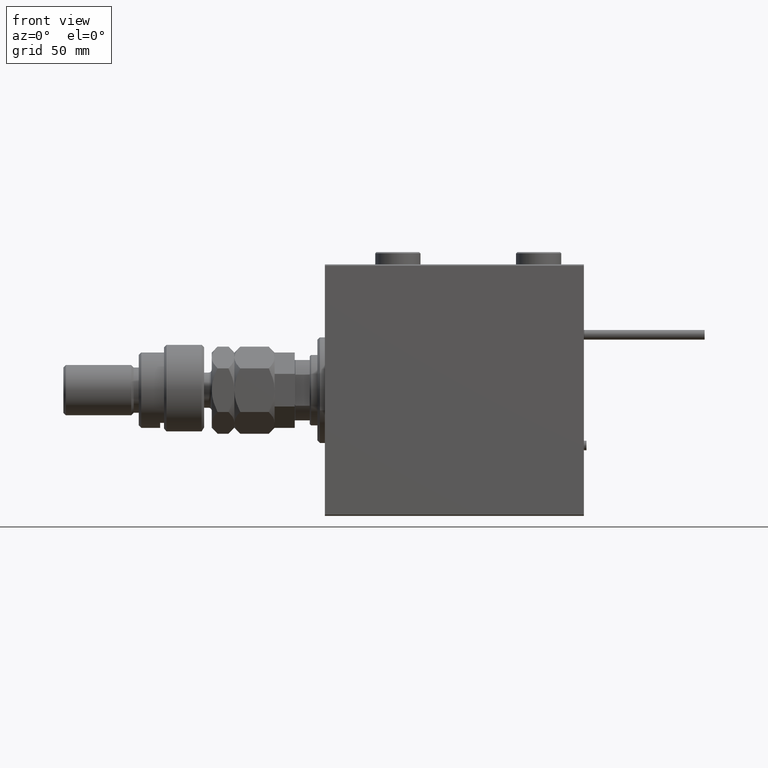
[diagram: clean part render]
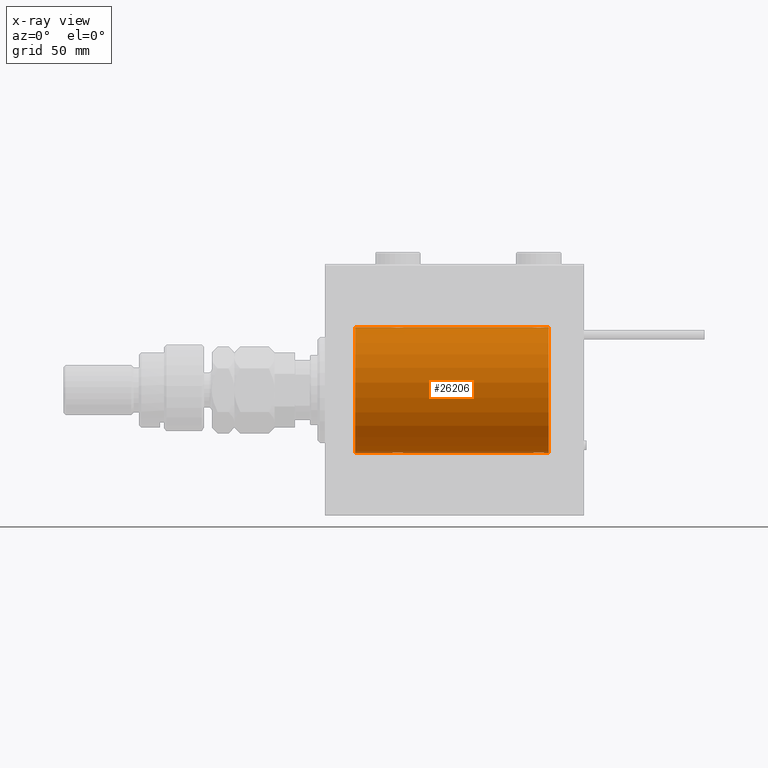
[diagram: x-ray — body ghosted, one internal face saturated and labeled with its STEP entity id]
A machine part, front view, then the same camera in x-ray: the body is ghosted and one INTERNAL B-rep face — a face not visible from any outside direction — is saturated and labeled: STEP entity #26206.
In plain terms, the highlighted cylindrical surface (partial cylindrical patch) has radius 25 mm, axis along (-1, -0, -0).
Its self-contained STEP definition (entity closure, byte-faithful):
#656 = CARTESIAN_POINT ( 'NONE',  ( 27.74616804575498108, -2.169003991399871989, 24.90589728951138326 ) ) ;
#849 = CARTESIAN_POINT ( 'NONE',  ( 85.80435660916303675, -2.372734907014170780, 24.88722742718433523 ) ) ;
#890 = CARTESIAN_POINT ( 'NONE',  ( 85.80788342405806191, -2.371528299825745645, -24.88734287464371420 ) ) ;
#1440 = CARTESIAN_POINT ( 'NONE',  ( 87.48417840057655326, -0.3254210271412207867, -24.99840249400844172 ) ) ;
#1450 = CARTESIAN_POINT ( 'NONE',  ( 28.35439333851368815, -2.420689345803754833, -24.88254961038873958 ) ) ;
#1718 = CARTESIAN_POINT ( 'NONE',  ( 28.19564339083697746, -2.372734907014167671, -24.88722742718433167 ) ) ;
#1990 = CARTESIAN_POINT ( 'NONE',  ( 31.49999999999999289, -0.1631750940176170117, -25.00000000000000711 ) ) ;
#2259 = CARTESIAN_POINT ( 'NONE',  ( 27.74915976075944712, -2.170728182476714174, -24.90574631553725027 ) ) ;
#3977 = CARTESIAN_POINT ( 'NONE',  ( 26.51582159942343608, -0.3254210271412225630, 24.99840249400844883 ) ) ;
#4431 = CARTESIAN_POINT ( 'NONE',  ( 86.88185954148649159, -1.653834020452929598, 24.94550385189585029 ) ) ;
#4661 = DIRECTION ( 'NONE',  ( -1.000000000000000000, -0.000000000000000000, -0.000000000000000000 ) ) ;
#4710 = CARTESIAN_POINT ( 'NONE',  ( 86.52256774340190759, -1.989585286700241484, 24.92087098724765681 ) ) ;
#5018 = CARTESIAN_POINT ( 'NONE',  ( 82.75393620905931868, -1.109818057797417268, -24.97580694515541921 ) ) ;
#5331 = CARTESIAN_POINT ( 'NONE',  ( 31.49999999999998579, -0.3305063766663721148, 25.00000000000000000 ) ) ;
#5565 = CARTESIAN_POINT ( 'NONE',  ( 86.25383195424502958, -2.169003991399871545, -24.90589728951138326 ) ) ;
#5607 = CARTESIAN_POINT ( 'NONE',  ( 30.98538033717094464, -1.528152964861312801, 24.95362559291378801 ) ) ;
#5691 = EDGE_CURVE ( 'NONE', #19779, #40758, #9015, .T. ) ;
#5831 = CARTESIAN_POINT ( 'NONE',  ( 82.50000000000000000, -0.3305063766663816072, -25.00000000000000355 ) ) ;
#5844 = CARTESIAN_POINT ( 'NONE',  ( 26.56650644760253499, -0.6588655613945862966, -24.99312727339971119 ) ) ;
#5948 = EDGE_CURVE ( 'NONE', #18693, #32486, #26788, .T. ) ;
#6109 = CARTESIAN_POINT ( 'NONE',  ( 26.50000000000000355, -1.828402720252098442E-15, -25.00000000000000000 ) ) ;
#6350 = VECTOR ( 'NONE', #23442, 1000.000000000000000 ) ;
#6761 = CIRCLE ( 'NONE', #37593, 25.00000000000000000 ) ;
#6917 = CARTESIAN_POINT ( 'NONE',  ( 30.25383195424503313, -2.169003991399864884, -24.90589728951138682 ) ) ;
#7088 = CARTESIAN_POINT ( 'NONE',  ( 89.00000000000000000, 0.000000000000000000, 25.00000000000000000 ) ) ;
#7151 = DIRECTION ( 'NONE',  ( -1.000000000000000000, 0.000000000000000000, 0.000000000000000000 ) ) ;
#7202 = CARTESIAN_POINT ( 'NONE',  ( 82.57985090779071413, -0.6480119923854228414, 24.99212088949390775 ) ) ;
#7278 = DIRECTION ( 'NONE',  ( -1.000000000000000000, -0.000000000000000000, -0.000000000000000000 ) ) ;
#7742 = CARTESIAN_POINT ( 'NONE',  ( 82.62784030591390660, -0.8058335233485491855, 24.98746277938383287 ) ) ;
#8245 = CARTESIAN_POINT ( 'NONE',  ( 89.00000000000000000, 0.000000000000000000, 25.00000000000000000 ) ) ;
#8292 = CARTESIAN_POINT ( 'NONE',  ( 86.98538033717096596, -1.528152964861306806, 24.95362559291379156 ) ) ;
#8376 = CARTESIAN_POINT ( 'NONE',  ( 26.57985090779070347, -0.6480119923854229524, 24.99212088949390420 ) ) ;
#8555 = CARTESIAN_POINT ( 'NONE',  ( 84.35095609830904095, -2.419770561643906248, 24.88263927071751169 ) ) ;
#8910 = CARTESIAN_POINT ( 'NONE',  ( 26.62784030591392792, -0.8058335233485480753, 24.98746277938383287 ) ) ;
#9015 = CIRCLE ( 'NONE', #39869, 25.00000000000000000 ) ;
#9110 = CARTESIAN_POINT ( 'NONE',  ( 86.10723845838408863, -2.247417070759893942, 24.89885693081947338 ) ) ;
#9415 = CARTESIAN_POINT ( 'NONE',  ( 84.67403429960538119, -2.484007091859759431, -24.87630842367762796 ) ) ;
#9696 = CARTESIAN_POINT ( 'NONE',  ( 87.17011290280923674, -1.252049606094329581, -24.96900299967627035 ) ) ;
#9998 = VERTEX_POINT ( 'NONE', #29843 ) ;
#10015 = CARTESIAN_POINT ( 'NONE',  ( 31.24606379094067066, -1.109818057797417046, 24.97580694515541921 ) ) ;
#10241 = CARTESIAN_POINT ( 'NONE',  ( 83.11814045851355104, -1.653834020452941589, -24.94550385189584318 ) ) ;
#10250 = CARTESIAN_POINT ( 'NONE',  ( 28.83676410361456632, -2.500125740978188738, -24.87467329022545215 ) ) ;
#10279 = CARTESIAN_POINT ( 'NONE',  ( 28.67052319885732103, -2.483544361357271857, 24.87635491893501438 ) ) ;
#10502 = CARTESIAN_POINT ( 'NONE',  ( 82.56650644760252078, -0.6588655613945904044, -24.99312727339970053 ) ) ;
#10510 = CARTESIAN_POINT ( 'NONE',  ( 31.37215969408608274, -0.8058335233485438565, -24.98746277938383997 ) ) ;
#10796 = CARTESIAN_POINT ( 'NONE',  ( 28.67403429960539896, -2.484007091859758543, -24.87630842367763151 ) ) ;
#11480 = EDGE_CURVE ( 'NONE', #40758, #23247, #32726, .T. ) ;
#11681 = LINE ( 'NONE', #35977, #46759 ) ;
#12522 = CARTESIAN_POINT ( 'NONE',  ( 27.47463817756919369, -1.987446652080264720, 24.92104239223420592 ) ) ;
#12578 = VECTOR ( 'NONE', #15060, 1000.000000000000000 ) ;
#12892 = VERTEX_POINT ( 'NONE', #47554 ) ;
#13840 = CARTESIAN_POINT ( 'NONE',  ( 86.11036796508862778, -2.245863995402897384, -24.89899750494196695 ) ) ;
#14126 = CARTESIAN_POINT ( 'NONE',  ( 27.01461966282905891, -1.528152964861306584, -24.95362559291379156 ) ) ;
#14158 = CARTESIAN_POINT ( 'NONE',  ( 30.10723845838410284, -2.247417070759897495, 24.89885693081946272 ) ) ;
#14650 = CARTESIAN_POINT ( 'NONE',  ( 82.83172358506043054, -1.255214705003182329, -24.96884293994577675 ) ) ;
#15060 = DIRECTION ( 'NONE',  ( -1.000000000000000000, -0.000000000000000000, -0.000000000000000000 ) ) ;
#15491 = CARTESIAN_POINT ( 'NONE',  ( 82.50000000000001421, -0.1631750940176218967, 25.00000000000000355 ) ) ;
#15591 = ORIENTED_EDGE ( 'NONE', *, *, #29338, .F. ) ;
#15883 = VERTEX_POINT ( 'NONE', #46874 ) ;
#16025 = ORIENTED_EDGE ( 'NONE', *, *, #52027, .T. ) ;
#16304 = CARTESIAN_POINT ( 'NONE',  ( 83.01250184165601809, -1.525407911884360201, 24.95379469572362297 ) ) ;
#17536 = VERTEX_POINT ( 'NONE', #18480 ) ;
#17705 = FACE_OUTER_BOUND ( 'NONE', #31099, .T. ) ;
#17710 = CARTESIAN_POINT ( 'NONE',  ( 83.47743225659813504, -1.989585286700250588, -24.92087098724766747 ) ) ;
#17756 = CARTESIAN_POINT ( 'NONE',  ( 30.25084023924055998, -2.170728182476720391, 24.90574631553725027 ) ) ;
#17896 = CARTESIAN_POINT ( 'NONE',  ( 89.00000000000000000, 0.000000000000000000, 0.000000000000000000 ) ) ;
#17989 = CYLINDRICAL_SURFACE ( 'NONE', #42473, 25.00000000000000000 ) ;
#18127 = CARTESIAN_POINT ( 'NONE',  ( 89.00000000000000000, 0.000000000000000000, 25.00000000000000000 ) ) ;
#18267 = CARTESIAN_POINT ( 'NONE',  ( 27.11814045851354393, -1.653834020452933151, -24.94550385189584674 ) ) ;
#18299 = CARTESIAN_POINT ( 'NONE',  ( 30.65121133559112820, -1.884161199660616459, 24.92916496727982434 ) ) ;
#18480 = CARTESIAN_POINT ( 'NONE',  ( 26.50000000000000355, -1.828402720252098442E-15, -25.00000000000000000 ) ) ;
#18568 = CARTESIAN_POINT ( 'NONE',  ( 29.16323589638543723, -2.500125740978195843, 24.87467329022545570 ) ) ;
#18693 = VERTEX_POINT ( 'NONE', #38495 ) ;
#18800 = CARTESIAN_POINT ( 'NONE',  ( 87.24760251019550594, -1.106703319666883178, -24.97594585958024282 ) ) ;
#18811 = CARTESIAN_POINT ( 'NONE',  ( 31.48417840057656747, -0.3254210271412188993, -24.99840249400844883 ) ) ;
#19066 = CARTESIAN_POINT ( 'NONE',  ( 26.83172358506042698, -1.255214705003176112, -24.96884293994577320 ) ) ;
#19333 = CARTESIAN_POINT ( 'NONE',  ( 31.42014909220928942, -0.6480119923854186226, -24.99212088949390420 ) ) ;
#19779 = VERTEX_POINT ( 'NONE', #40077 ) ;
#19893 = CARTESIAN_POINT ( 'NONE',  ( 83.47463817756923277, -1.987446652080266496, 24.92104239223421303 ) ) ;
#19957 = EDGE_CURVE ( 'NONE', #47385, #23247, #51158, .T. ) ;
#20792 = CARTESIAN_POINT ( 'NONE',  ( 26.82988709719076681, -1.252049606094339795, 24.96900299967627390 ) ) ;
#20894 = VECTOR ( 'NONE', #49571, 1000.000000000000000 ) ;
#20972 = CARTESIAN_POINT ( 'NONE',  ( 84.67052319885729617, -2.483544361357268304, 24.87635491893502149 ) ) ;
#21244 = CARTESIAN_POINT ( 'NONE',  ( 87.50000000000000000, 2.791216707898424283E-15, 25.00000000000000000 ) ) ;
#21461 = ORIENTED_EDGE ( 'NONE', *, *, #31289, .F. ) ;
#21465 = DIRECTION ( 'NONE',  ( -1.000000000000000000, 0.000000000000000000, 0.000000000000000000 ) ) ;
#21877 = CARTESIAN_POINT ( 'NONE',  ( 28.83293504821940090, -2.499872792855082793, 24.87469871246082320 ) ) ;
#21989 = VECTOR ( 'NONE', #33403, 1000.000000000000000 ) ;
#22067 = CARTESIAN_POINT ( 'NONE',  ( 87.43349355239749343, -0.6588655613945794132, 24.99312727339970053 ) ) ;
#22389 = CARTESIAN_POINT ( 'NONE',  ( 84.83676410361455567, -2.500125740978192734, -24.87467329022545215 ) ) ;
#22430 = CARTESIAN_POINT ( 'NONE',  ( 31.43349355239747567, -0.6588655613945881839, 24.99312727339970053 ) ) ;
#22928 = CARTESIAN_POINT ( 'NONE',  ( 87.50000000000000000, 3.061616978466896943E-15, -25.00000000000000000 ) ) ;
#23209 = CARTESIAN_POINT ( 'NONE',  ( 27.89276154161590426, -2.247417070759891278, -24.89885693081946272 ) ) ;
#23247 = VERTEX_POINT ( 'NONE', #38195 ) ;
#23442 = DIRECTION ( 'NONE',  ( -1.000000000000000000, -0.000000000000000000, -0.000000000000000000 ) ) ;
#23466 = CARTESIAN_POINT ( 'NONE',  ( 27.47743225659810307, -1.989585286700239708, -24.92087098724766392 ) ) ;
#23949 = ORIENTED_EDGE ( 'NONE', *, *, #11480, .F. ) ;
#24223 = B_SPLINE_CURVE_WITH_KNOTS ( 'NONE', 3,
 ( #22928, #35063, #1440, #26231, #31207, #18800, #9696, #51357, #48042, #26508, #43360, #5565, #13840, #890, #51627, #35616, #38952, #22389, #9415, #48301, #47769, #39230, #39769, #17710, #31459, #10241, #52440, #14650, #5018, #10502, #5831, #27052 ),
 .UNSPECIFIED., .F., .F.,
 ( 4, 2, 2, 2, 2, 2, 2, 2, 2, 2, 2, 2, 2, 2, 2, 4 ),
 ( 0.007821024441662296350, 0.008309723826317901019, 0.008798423210973505687, 0.009287122595629112090, 0.009775821980284716758, 0.01026452136494032316, 0.01075322074959592783, 0.01124192013425153250, 0.01173061951890713890, 0.01221931890356274530, 0.01270801828821834824, 0.01319671767287395464, 0.01368541705752955931, 0.01417411644218516398, 0.01466281582684076865, 0.01564021459615199533 ),
 .UNSPECIFIED. ) ;
#24561 = CARTESIAN_POINT ( 'NONE',  ( 82.49999999999998579, -1.940163953345817485E-23, 25.00000000000000000 ) ) ;
#24577 = CARTESIAN_POINT ( 'NONE',  ( 89.00000000000000000, 3.061616997868383043E-15, -25.00000000000000000 ) ) ;
#25105 = CARTESIAN_POINT ( 'NONE',  ( 87.24606379094066710, -1.109818057797408608, 24.97580694515542277 ) ) ;
#25963 = CARTESIAN_POINT ( 'NONE',  ( 89.00000000000000000, 0.000000000000000000, 0.000000000000000000 ) ) ;
#26206 = ADVANCED_FACE ( 'NONE', ( #17705 ), #17989, .F. ) ;
#26231 = CARTESIAN_POINT ( 'NONE',  ( 87.42014909220927166, -0.6480119923854202879, -24.99212088949390420 ) ) ;
#26508 = CARTESIAN_POINT ( 'NONE',  ( 86.65383336149338334, -1.881857718844717864, -24.92933960374833902 ) ) ;
#26788 = B_SPLINE_CURVE_WITH_KNOTS ( 'NONE', 3,
 ( #29865, #46711, #3977, #8376, #8910, #42583, #20792, #37622, #54418, #38438, #12522, #656, #34298, #29325, #46180, #10279, #21877, #18568, #51400, #43674, #30973, #14158, #17756, #47814, #18299, #51936, #5607, #52478, #10015, #22430, #5331, #27093 ),
 .UNSPECIFIED., .F., .F.,
 ( 4, 2, 2, 2, 2, 2, 2, 2, 2, 2, 2, 2, 2, 2, 2, 4 ),
 ( 0.007821024441662275534, 0.008309723826317880202, 0.008798423210973486605, 0.009287122595629093008, 0.009775821980284697676, 0.01026452136494030234, 0.01075322074959590875, 0.01124192013425151515, 0.01173061951890711982, 0.01221931890356272449, 0.01270801828821833089, 0.01319671767287393729, 0.01368541705752954196, 0.01417411644218514663, 0.01466281582684075303, 0.01564021459615196410 ),
 .UNSPECIFIED. ) ;
#26987 = CARTESIAN_POINT ( 'NONE',  ( 31.50000000000000000, -3.359922002512890391E-15, 25.00000000000000000 ) ) ;
#27052 = CARTESIAN_POINT ( 'NONE',  ( 82.49999999999998579, -5.047181518224410404E-15, -25.00000000000000000 ) ) ;
#27093 = CARTESIAN_POINT ( 'NONE',  ( 31.50000000000000000, -3.359922002512890391E-15, 25.00000000000000000 ) ) ;
#27327 = CARTESIAN_POINT ( 'NONE',  ( 30.88412382786471611, -1.651251241585095508, -24.94567559498348785 ) ) ;
#27606 = CARTESIAN_POINT ( 'NONE',  ( 26.50000000000001066, -0.3305063766663757785, -25.00000000000000355 ) ) ;
#28577 = CARTESIAN_POINT ( 'NONE',  ( 89.00000000000000000, 0.000000000000000000, 25.00000000000000000 ) ) ;
#28818 = VERTEX_POINT ( 'NONE', #38999 ) ;
#28956 = CARTESIAN_POINT ( 'NONE',  ( 84.19211657594195231, -2.371528299825746089, 24.88734287464371420 ) ) ;
#29325 = CARTESIAN_POINT ( 'NONE',  ( 28.19211657594193809, -2.371528299825749198, 24.88734287464370709 ) ) ;
#29338 = EDGE_CURVE ( 'NONE', #47385, #32486, #42449, .T. ) ;
#29843 = CARTESIAN_POINT ( 'NONE',  ( 87.50000000000000000, 3.061616978466896943E-15, -25.00000000000000000 ) ) ;
#29865 = CARTESIAN_POINT ( 'NONE',  ( 26.50000000000000355, -1.940558383798427991E-23, 25.00000000000000000 ) ) ;
#30020 = EDGE_CURVE ( 'NONE', #19779, #9998, #31446, .T. ) ;
#30055 = CARTESIAN_POINT ( 'NONE',  ( 85.64560666148635448, -2.420689345803754833, 24.88254961038874313 ) ) ;
#30103 = CARTESIAN_POINT ( 'NONE',  ( 82.49999999999998579, -1.940163953345817485E-23, 25.00000000000000000 ) ) ;
#30753 = ORIENTED_EDGE ( 'NONE', *, *, #50842, .T. ) ;
#30973 = CARTESIAN_POINT ( 'NONE',  ( 29.80435660916301899, -2.372734907014175665, 24.88722742718433878 ) ) ;
#31099 = EDGE_LOOP ( 'NONE', ( #38190, #52007, #41886, #36042, #16025, #30753, #54412, #21461, #43388, #15591, #44301, #23949 ) ) ;
#31207 = CARTESIAN_POINT ( 'NONE',  ( 87.37215969408605076, -0.8058335233485464100, -24.98746277938382931 ) ) ;
#31289 = EDGE_CURVE ( 'NONE', #18693, #15883, #31592, .T. ) ;
#31446 = LINE ( 'NONE', #48557, #6350 ) ;
#31459 = CARTESIAN_POINT ( 'NONE',  ( 83.34878866440891443, -1.884161199660620234, -24.92916496727982789 ) ) ;
#31469 = CARTESIAN_POINT ( 'NONE',  ( 29.64904390169096970, -2.419770561643902695, -24.88263927071750459 ) ) ;
#31592 = LINE ( 'NONE', #18127, #12578 ) ;
#31737 = CARTESIAN_POINT ( 'NONE',  ( 31.50000000000000000, 3.061616978460191625E-15, -25.00000000000000000 ) ) ;
#32021 = CARTESIAN_POINT ( 'NONE',  ( 30.98749815834397481, -1.525407911884360868, -24.95379469572361941 ) ) ;
#32086 = EDGE_CURVE ( 'NONE', #9998, #36168, #24223, .T. ) ;
#32294 = CARTESIAN_POINT ( 'NONE',  ( 82.51582159942343253, -0.3254210271412230071, 24.99840249400844883 ) ) ;
#32486 = VERTEX_POINT ( 'NONE', #26987 ) ;
#32566 = CARTESIAN_POINT ( 'NONE',  ( 83.74616804575497042, -2.169003991399871989, 24.90589728951138682 ) ) ;
#32726 = LINE ( 'NONE', #28577, #20894 ) ;
#33108 = CARTESIAN_POINT ( 'NONE',  ( 83.11587617213530166, -1.651251241585104834, 24.94567559498348785 ) ) ;
#33383 = CARTESIAN_POINT ( 'NONE',  ( 86.25084023924053156, -2.170728182476715951, 24.90574631553725027 ) ) ;
#33403 = DIRECTION ( 'NONE',  ( -1.000000000000000000, -0.000000000000000000, -0.000000000000000000 ) ) ;
#33662 = CARTESIAN_POINT ( 'NONE',  ( 87.16827641493955525, -1.255214705003175446, 24.96884293994578030 ) ) ;
#34212 = CARTESIAN_POINT ( 'NONE',  ( 87.50000000000004263, -0.3305063766663752789, 25.00000000000000711 ) ) ;
#34298 = CARTESIAN_POINT ( 'NONE',  ( 27.88963203491136156, -2.245863995402901381, 24.89899750494197050 ) ) ;
#34797 = DIRECTION ( 'NONE',  ( 0.000000000000000000, 0.000000000000000000, 1.000000000000000000 ) ) ;
#35063 = CARTESIAN_POINT ( 'NONE',  ( 87.50000000000001421, -0.1631750940176186770, -25.00000000000000711 ) ) ;
#35616 = CARTESIAN_POINT ( 'NONE',  ( 85.32947680114266120, -2.483544361357266972, -24.87635491893501793 ) ) ;
#35624 = CARTESIAN_POINT ( 'NONE',  ( 29.32947680114268962, -2.483544361357264751, -24.87635491893502149 ) ) ;
#35886 = CARTESIAN_POINT ( 'NONE',  ( 26.75393620905933645, -1.109818057797413715, -24.97580694515542277 ) ) ;
#35977 = CARTESIAN_POINT ( 'NONE',  ( 89.00000000000000000, 3.061616997868383043E-15, -25.00000000000000000 ) ) ;
#36042 = ORIENTED_EDGE ( 'NONE', *, *, #49166, .T. ) ;
#36168 = VERTEX_POINT ( 'NONE', #42684 ) ;
#37271 = CARTESIAN_POINT ( 'NONE',  ( 82.82988709719072062, -1.252049606094332024, 24.96900299967626680 ) ) ;
#37548 = LINE ( 'NONE', #24577, #21989 ) ;
#37593 = AXIS2_PLACEMENT_3D ( 'NONE', #53753, #7151, #44681 ) ;
#37622 = CARTESIAN_POINT ( 'NONE',  ( 27.01250184165601809, -1.525407911884367085, 24.95379469572361941 ) ) ;
#38190 = ORIENTED_EDGE ( 'NONE', *, *, #5691, .F. ) ;
#38195 = CARTESIAN_POINT ( 'NONE',  ( 87.50000000000000000, 2.791216707898424283E-15, 25.00000000000000000 ) ) ;
#38298 = DIRECTION ( 'NONE',  ( 0.000000000000000000, 0.000000000000000000, 1.000000000000000000 ) ) ;
#38438 = CARTESIAN_POINT ( 'NONE',  ( 27.34616663850662377, -1.881857718844717642, 24.92933960374833902 ) ) ;
#38495 = CARTESIAN_POINT ( 'NONE',  ( 26.50000000000000355, -1.940558383798427991E-23, 25.00000000000000000 ) ) ;
#38668 = DIRECTION ( 'NONE',  ( -1.000000000000000000, -0.000000000000000000, -0.000000000000000000 ) ) ;
#38952 = CARTESIAN_POINT ( 'NONE',  ( 85.16706495178058844, -2.499872792855078796, -24.87469871246082320 ) ) ;
#38999 = CARTESIAN_POINT ( 'NONE',  ( 11.99999999999999645, 3.061616997868383043E-15, -25.00000000000000000 ) ) ;
#39230 = CARTESIAN_POINT ( 'NONE',  ( 83.89276154161588295, -2.247417070759898827, -24.89885693081945917 ) ) ;
#39242 = CARTESIAN_POINT ( 'NONE',  ( 30.11036796508864555, -2.245863995402895164, -24.89899750494197406 ) ) ;
#39511 = CARTESIAN_POINT ( 'NONE',  ( 30.65383336149337623, -1.881857718844709870, -24.92933960374833191 ) ) ;
#39769 = CARTESIAN_POINT ( 'NONE',  ( 83.74915976075946844, -2.170728182476722612, -24.90574631553725027 ) ) ;
#39782 = CARTESIAN_POINT ( 'NONE',  ( 29.80788342405805835, -2.371528299825740760, -24.88734287464371064 ) ) ;
#39869 = AXIS2_PLACEMENT_3D ( 'NONE', #17896, #21465, #38298 ) ;
#40061 = CARTESIAN_POINT ( 'NONE',  ( 30.52536182243080631, -1.987446652080256504, -24.92104239223419881 ) ) ;
#40077 = CARTESIAN_POINT ( 'NONE',  ( 89.00000000000000000, 3.061616997868383043E-15, -25.00000000000000000 ) ) ;
#40758 = VERTEX_POINT ( 'NONE', #7088 ) ;
#40885 = CARTESIAN_POINT ( 'NONE',  ( 83.34616663850660245, -1.881857718844719640, 24.92933960374833902 ) ) ;
#41384 = EDGE_CURVE ( 'NONE', #28818, #15883, #6761, .T. ) ;
#41417 = CARTESIAN_POINT ( 'NONE',  ( 82.75239748980446564, -1.106703319666886065, 24.97594585958023572 ) ) ;
#41886 = ORIENTED_EDGE ( 'NONE', *, *, #32086, .T. ) ;
#42220 = CARTESIAN_POINT ( 'NONE',  ( 86.65121133559109978, -1.884161199660608688, 24.92916496727982434 ) ) ;
#42449 = LINE ( 'NONE', #8245, #52997 ) ;
#42473 = AXIS2_PLACEMENT_3D ( 'NONE', #25963, #38668, #34797 ) ;
#42498 = CARTESIAN_POINT ( 'NONE',  ( 85.32596570039463302, -2.484007091859760763, 24.87630842367763861 ) ) ;
#42583 = CARTESIAN_POINT ( 'NONE',  ( 26.75239748980449761, -1.106703319666885399, 24.97594585958023572 ) ) ;
#42684 = CARTESIAN_POINT ( 'NONE',  ( 82.49999999999998579, -5.047181518224410404E-15, -25.00000000000000000 ) ) ;
#43360 = CARTESIAN_POINT ( 'NONE',  ( 86.52536182243079566, -1.987446652080264720, -24.92104239223420592 ) ) ;
#43388 = ORIENTED_EDGE ( 'NONE', *, *, #5948, .T. ) ;
#43674 = CARTESIAN_POINT ( 'NONE',  ( 29.64560666148631896, -2.420689345803761050, 24.88254961038873958 ) ) ;
#44301 = ORIENTED_EDGE ( 'NONE', *, *, #19957, .T. ) ;
#44681 = DIRECTION ( 'NONE',  ( 0.000000000000000000, 0.000000000000000000, 1.000000000000000000 ) ) ;
#46180 = CARTESIAN_POINT ( 'NONE',  ( 28.35095609830903740, -2.419770561643910689, 24.88263927071751169 ) ) ;
#46625 = CARTESIAN_POINT ( 'NONE',  ( 84.83293504821942577, -2.499872792855080572, 24.87469871246082675 ) ) ;
#46711 = CARTESIAN_POINT ( 'NONE',  ( 26.50000000000000711, -0.1631750940176214526, 25.00000000000000711 ) ) ;
#46759 = VECTOR ( 'NONE', #7278, 1000.000000000000000 ) ;
#46874 = CARTESIAN_POINT ( 'NONE',  ( 11.99999999999999645, 0.000000000000000000, 25.00000000000000000 ) ) ;
#47178 = CARTESIAN_POINT ( 'NONE',  ( 85.16323589638543012, -2.500125740978193178, 24.87467329022545925 ) ) ;
#47385 = VERTEX_POINT ( 'NONE', #30103 ) ;
#47554 = CARTESIAN_POINT ( 'NONE',  ( 31.50000000000000000, 3.061616978460191625E-15, -25.00000000000000000 ) ) ;
#47769 = CARTESIAN_POINT ( 'NONE',  ( 84.19564339083697746, -2.372734907014174333, -24.88722742718433878 ) ) ;
#47814 = CARTESIAN_POINT ( 'NONE',  ( 30.52256774340189693, -1.989585286700245037, 24.92087098724766747 ) ) ;
#47916 = B_SPLINE_CURVE_WITH_KNOTS ( 'NONE', 3,
 ( #31737, #1990, #18811, #19333, #10510, #48313, #48583, #32021, #27327, #39511, #40061, #6917, #39242, #39782, #31469, #35624, #52450, #10250, #10796, #1450, #1718, #23209, #2259, #23466, #51905, #18267, #14126, #19066, #35886, #5844, #27606, #6109 ),
 .UNSPECIFIED., .F., .F.,
 ( 4, 2, 2, 2, 2, 2, 2, 2, 2, 2, 2, 2, 2, 2, 2, 4 ),
 ( 0.007821024441662299820, 0.008309723826317909692, 0.008798423210973517830, 0.009287122595629124233, 0.009775821980284728902, 0.01026452136494033357, 0.01075322074959593997, 0.01124192013425154464, 0.01173061951890715104, 0.01221931890356275571, 0.01270801828821836038, 0.01319671767287396852, 0.01368541705752957319, 0.01417411644218517959, 0.01466281582684078426, 0.01564021459615199533 ),
 .UNSPECIFIED. ) ;
#48042 = CARTESIAN_POINT ( 'NONE',  ( 86.88412382786469834, -1.651251241585103724, -24.94567559498349141 ) ) ;
#48301 = CARTESIAN_POINT ( 'NONE',  ( 84.35439333851367394, -2.420689345803753501, -24.88254961038873958 ) ) ;
#48313 = CARTESIAN_POINT ( 'NONE',  ( 31.24760251019551305, -1.106703319666880514, -24.97594585958023927 ) ) ;
#48557 = CARTESIAN_POINT ( 'NONE',  ( 89.00000000000000000, 3.061616997868383043E-15, -25.00000000000000000 ) ) ;
#48583 = CARTESIAN_POINT ( 'NONE',  ( 31.17011290280924740, -1.252049606094333578, -24.96900299967627390 ) ) ;
#49166 = EDGE_CURVE ( 'NONE', #36168, #12892, #37548, .T. ) ;
#49571 = DIRECTION ( 'NONE',  ( -1.000000000000000000, -0.000000000000000000, -0.000000000000000000 ) ) ;
#49946 = CARTESIAN_POINT ( 'NONE',  ( 83.88963203491134379, -2.245863995402899160, 24.89899750494197050 ) ) ;
#50842 = EDGE_CURVE ( 'NONE', #17536, #28818, #11681, .T. ) ;
#51158 = B_SPLINE_CURVE_WITH_KNOTS ( 'NONE', 3,
 ( #24561, #15491, #32294, #7202, #7742, #41417, #37271, #16304, #33108, #40885, #19893, #32566, #49946, #28956, #8555, #20972, #46625, #47178, #42498, #30055, #849, #9110, #33383, #4710, #42220, #4431, #8292, #33662, #25105, #22067, #34212, #21244 ),
 .UNSPECIFIED., .F., .F.,
 ( 4, 2, 2, 2, 2, 2, 2, 2, 2, 2, 2, 2, 2, 2, 2, 4 ),
 ( 0.007821024441662294616, 0.008309723826317902753, 0.008798423210973510891, 0.009287122595629119029, 0.009775821980284727167, 0.01026452136494033530, 0.01075322074959594344, 0.01124192013425155158, 0.01173061951890715972, 0.01221931890356276786, 0.01270801828821837599, 0.01319671767287398413, 0.01368541705752959400, 0.01417411644218520041, 0.01466281582684080854, 0.01564021459615200921 ),
 .UNSPECIFIED. ) ;
#51357 = CARTESIAN_POINT ( 'NONE',  ( 86.98749815834396770, -1.525407911884357315, -24.95379469572362297 ) ) ;
#51400 = CARTESIAN_POINT ( 'NONE',  ( 29.32596570039460104, -2.484007091859765204, 24.87630842367763506 ) ) ;
#51627 = CARTESIAN_POINT ( 'NONE',  ( 85.64904390169098747, -2.419770561643905804, -24.88263927071751169 ) ) ;
#51905 = CARTESIAN_POINT ( 'NONE',  ( 27.34878866440888601, -1.884161199660611796, -24.92916496727982434 ) ) ;
#51936 = CARTESIAN_POINT ( 'NONE',  ( 30.88185954148645962, -1.653834020452937814, 24.94550385189585029 ) ) ;
#52007 = ORIENTED_EDGE ( 'NONE', *, *, #30020, .T. ) ;
#52027 = EDGE_CURVE ( 'NONE', #12892, #17536, #47916, .T. ) ;
#52440 = CARTESIAN_POINT ( 'NONE',  ( 83.01461966282906246, -1.528152964861310581, -24.95362559291378091 ) ) ;
#52450 = CARTESIAN_POINT ( 'NONE',  ( 29.16706495178059910, -2.499872792855075687, -24.87469871246081965 ) ) ;
#52478 = CARTESIAN_POINT ( 'NONE',  ( 31.16827641493957302, -1.255214705003183440, 24.96884293994578385 ) ) ;
#52997 = VECTOR ( 'NONE', #4661, 1000.000000000000000 ) ;
#53753 = CARTESIAN_POINT ( 'NONE',  ( 11.99999999999999645, 0.000000000000000000, 0.000000000000000000 ) ) ;
#54412 = ORIENTED_EDGE ( 'NONE', *, *, #41384, .T. ) ;
#54418 = CARTESIAN_POINT ( 'NONE',  ( 27.11587617213528745, -1.651251241585102836, 24.94567559498349141 ) ) ;